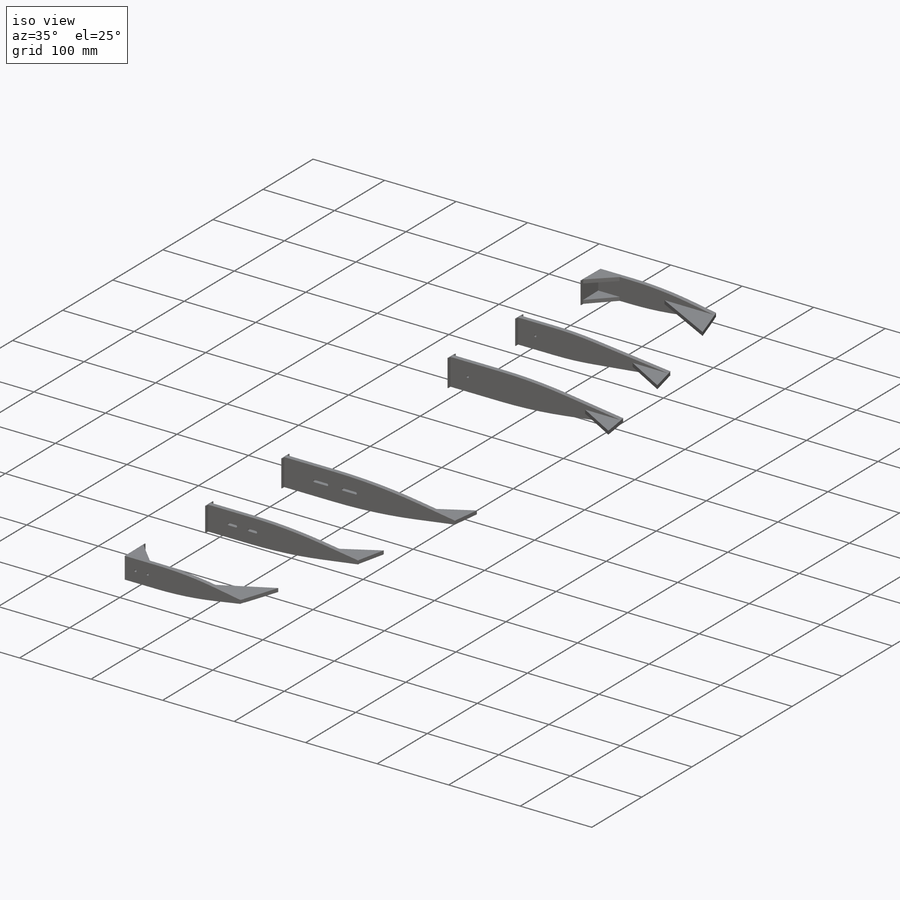
[diagram: iso view]
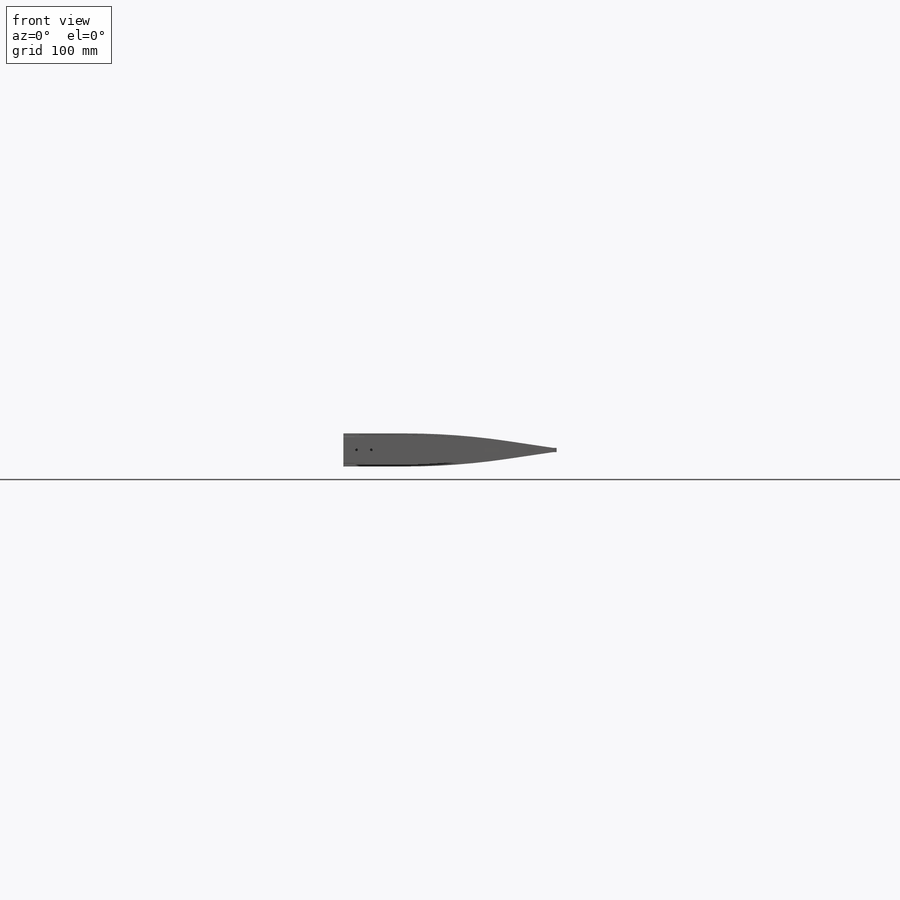
[diagram: front view]
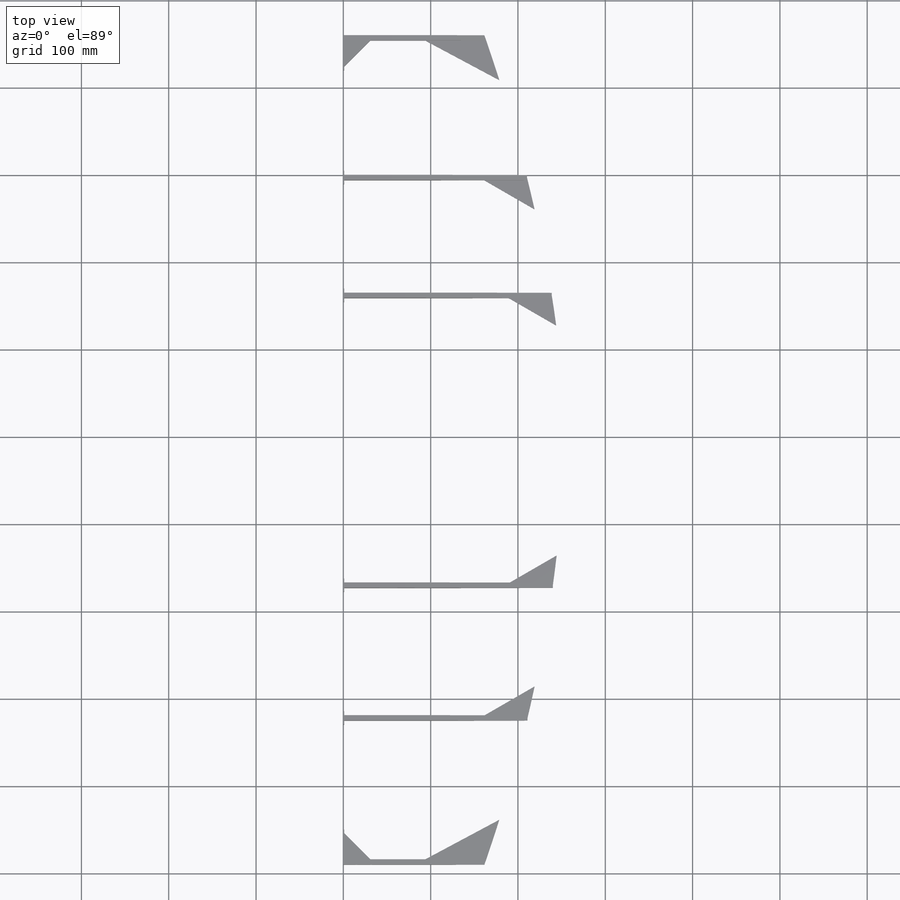
[diagram: top view]
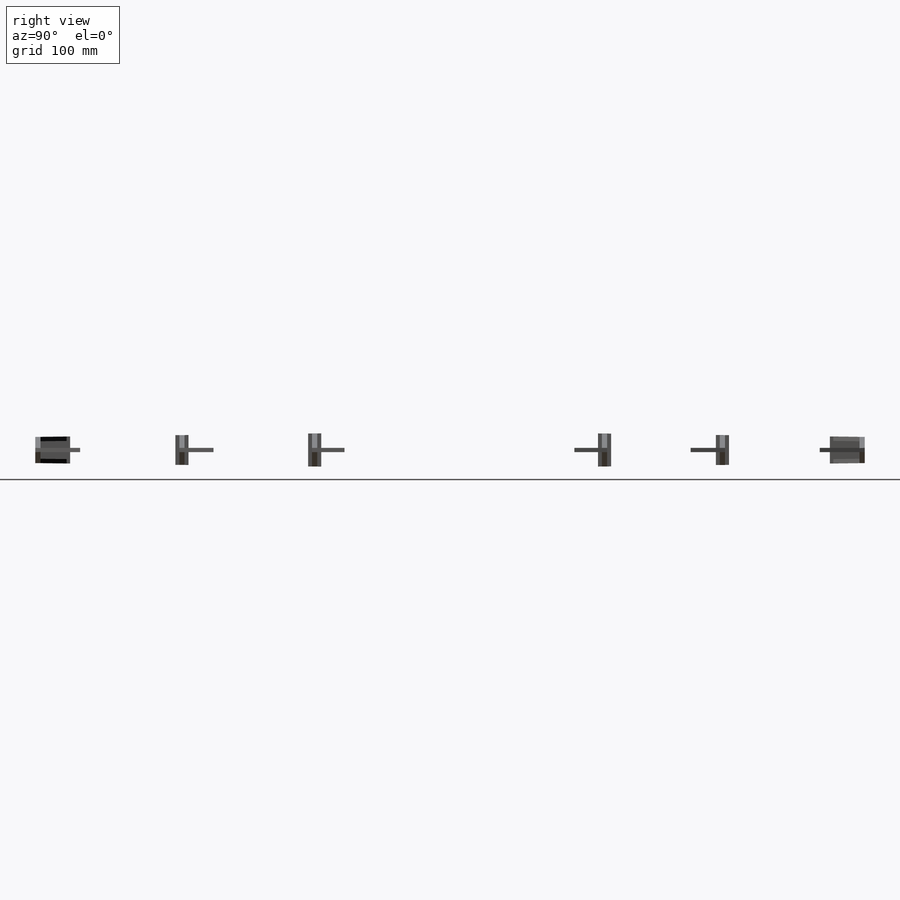
[diagram: right view]
SOLIDWORKS PART (.sldprt)
format: sldprt  version: not decoded by parser v0  size: 1,034,752 bytes
history: native  units: mm
features: sketch x11, extrude x10, plane x6, chamfer x2, material x1, cut_extrude x1 (+12 scaffold rows collapsed)
feature tree (43):
  scaffold x12  (default folders/planes/origin — collapsed)
  material  "Material <not specified>"
  sketch  "Sketch1"  dims[D1=40.0mm D2=30.0mm D3=42.0mm D4=460.0mm D5=490.0mm D6=15.0mm D7=152.0mm D8=135.0mm D9=162.0mm D10=170.0mm]
  sketch  "Sketch4"  dims[c1.D13=1000.0mm c1.D14=~1210.408603mm c1.D1=320.0mm c1.D2=30.0deg c1.D3=30.0deg c1.D5=60.0mm c1.D6=60.0mm c1.D7=49.0mm c1.D8=460.0mm c1.D9=490.0mm c1.D10=12.0mm c1.D11=15.0mm c1.D12=170.0mm c2.D1=320.0mm c2.D2=30.0deg c2.D3=30.0deg c2.D5=65.0mm c2.D6=60.0mm c2.D7=35.0mm c2.D8=460.0mm c2.D9=490.0mm c2.D10=12.0mm c2.D11=15.0mm c2.D12=170.0mm c2.D14=~66.333857mm c3.D14=~70.774272deg c4.D14=~66.333857mm c5.D14=~70.774272deg c6.D14=~53.64528mm c7.D14=~70.774272deg c7.D4=8.0mm]
  plane  "Plane1"
  plane  "Plane2"
  plane  "Plane3"
  plane  "Plane4"
  plane  "Plane5"
  plane  "Plane6"
  sketch  "Sketch5"  dims[c1.D3=500.0mm c1.D5=3.0mm c1.D1=1.0mm c1.D2=5.0mm c1.D4=45.0mm c1.D6=17.0mm c1.D7=15.0mm c1.D8=3.0mm c1.D9=~161.527475mm c2.D6=32.0mm]
  sketch  "Sketch6"  dims[D1=700.0mm D2=60.0mm D3=3.0mm D4=3.0mm D5=30.0mm D6=68.0mm D7=10.0mm]
  sketch  "Sketch7"  dims[c1.D2=800.0mm c1.D1=3.0mm c2.D2=3.0mm c2.D1=3.0mm c2.D3=70.0mm c2.D4=3.0mm c2.D5=43.0mm c2.D6=101.0mm c2.D7=18.0mm]
  sketch  "Sketch8"  dims[D2=700.0mm D4=3.0mm D1=3.0mm D3=70.0mm D5=25.0mm]
  sketch  "Sketch9"  dims[D3=500.0mm D1=3.0mm D2=50.0mm]
  sketch  "Sketch10"  dims[D1=3.0mm]
  extrude  "Extrude1"  Depth=6mm
  extrude  "Extrude2"  Depth=6mm
  extrude  "Extrude3"  Depth=6mm
  extrude  "Extrude4"  Depth=6mm
  extrude  "Extrude5"  Depth=6mm
  extrude  "Extrude6"  Depth=6mm
  extrude  "Extrude7"  Depth=1mm
  sketch  "Sketch11"  dims[D1=70.0mm D2=33.0mm D3=52.0mm D4=50.0mm D5=25.0mm D6=38.0mm D7=35.0mm]
  extrude  "Extrude8"  Depth=5mm
  cut_extrude  "Cut-Extrude1"  Depth=5mm
  sketch  "Sketch12"  dims[D1=5.0mm D2=30.0mm D3=0.05mm D4=0.05mm]
  extrude  "Extrude9"  Depth=30mm
  chamfer  "Chamfer1"  Distance=30mm
  sketch  "Sketch13"  dims[c1.D1=5.0mm c1.D2=~18.678554mm c2.D2=~1.71667deg c3.D2=0.05mm c3.D3=30.0mm c3.D4=0.05mm]
  extrude  "Extrude10"  Depth=30mm
  chamfer  "Chamfer2"  Distance=30mm
decode coverage: 24 of 24 modeling features carry decoded parameters
note: ~ marks probable driven/reference dimensions
note: suppression state not decoded; provenance and decode notes live in map.json
